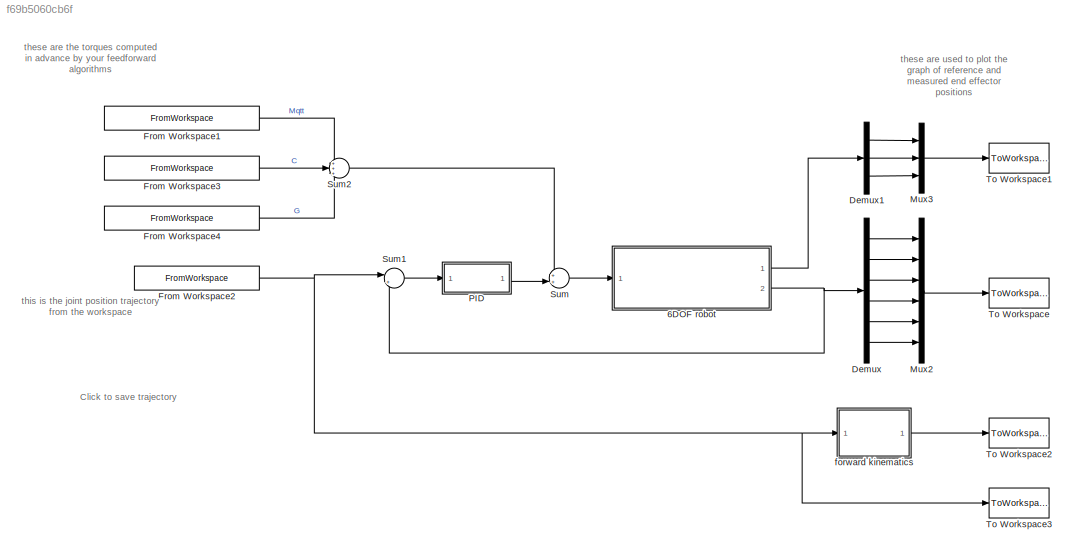
MODEL slx_f69b5060cb6f
KIND model
CONFIG AbsTol = auto
CONFIG EnableMultiTasking = on
CONFIG FixedStep = 0.01
CONFIG InitFcn = % set up model parameters from configuration block\nhws=get_param(gcs,'modelworkspace');\n%if strcmpi(get_param([gcs '/configuration'],'dmp'),'on');\n    hws.assignin('damp',0.0001);\n%else\n%    hws.assignin('damp',0);\n%end\n%if strcmpi(get_param([gcs '/configuration'],'grv'),'on');\n    hws.assignin('grav',9.81);\n%else\n %   hws.assignin('grav',0);\n%end\nswitch get_param([gcs '/PID'],'pid'),\ncase 'off',\n...<+1796ch>
CONFIG MaxStep = .6
CONFIG MinStep = auto
CONFIG RelTol = 1e-3
CONFIG SampleTimeConstraint = Unconstrained
CONFIG Solver = ode45
CONFIG SolverName = ode45
CONFIG StartTime = 0.0
CONFIG StopFcn = figure(69);clf;\nsubplot(2,1,1);\nplot(xyz_m.Time,xyz_m.Data(:,1),'r-');\ntitle('end effector position');\nhold on;\nplot(xyz_m.Time,xyz_m.Data(:,2),'g-');\nplot(xyz_m.Time,xyz_m.Data(:,3),'b-');\nplot(xyz_r.Time,xyz_r.Data(:,1),'r--');\nplot(xyz_r.Time,xyz_r.Data(:,2),'g--');\nplot(xyz_r.Time,xyz_r.Data(:,3),'b--');\nlegend('measured x','measured y','measured z','reference x','reference y','reference z');\n...<+232ch>
CONFIG StopTime = simtraj.time(end)
WORKSPACE source: MATLAB code (in-file)
WORKSPACE rho = 7850
WORKSPACE d1 = 0.3
WORKSPACE a2 = 0.2
WORKSPACE d4 = 0.2
WORKSPACE d6 = 0.1
WORKSPACE alpha = [90 0 90 -90 90 0]*pi/180
WORKSPACE rad1 = .02  (= 0.02)
WORKSPACE code: wid2=0.03;thi2=0.01;     % link 2 (beam)
WORKSPACE funnybone = 0.03
WORKSPACE rad4 = 0.01
WORKSPACE carpals = 0.03
WORKSPACE rad6 = 0.01
WORKSPACE damp = 0
WORKSPACE q = [0 0 0 0 0 0]
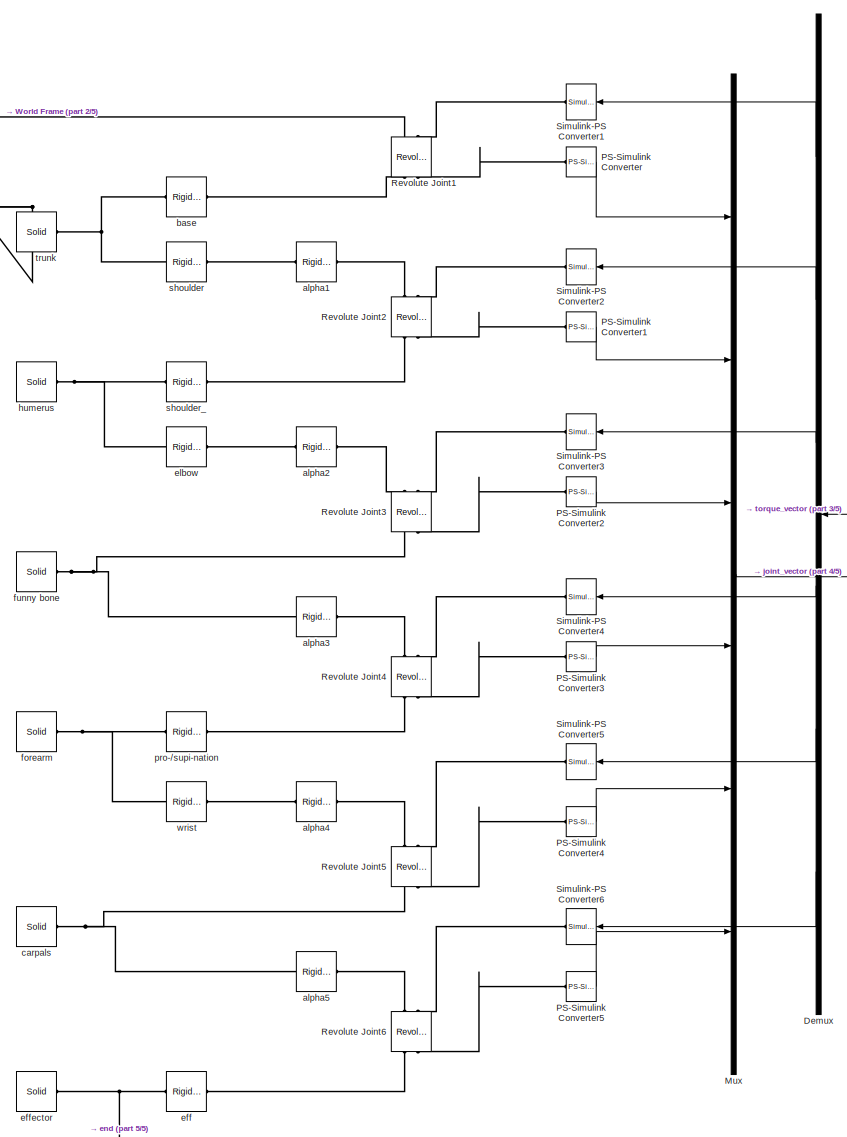
[diagram: 6DOF robot - part 1/5, center side, full height]
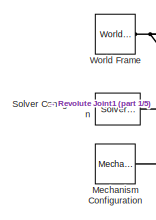
[diagram: 6DOF robot - part 2/5, top left region]
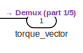
[diagram: 6DOF robot - part 3/5, middle right region]
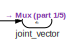
[diagram: 6DOF robot - part 4/5, middle right region]
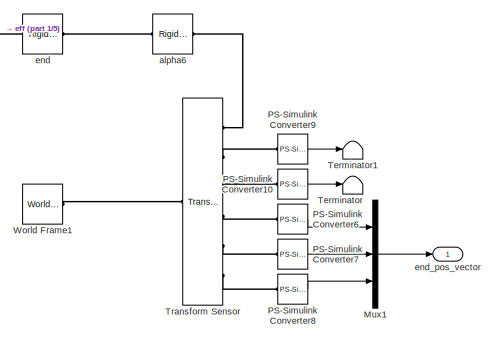
[diagram: 6DOF robot - part 5/5, bottom center region]
BLOCK [SubSystem] 6DOF robot
  Ports = [1, 2]
  RequestExecContextInheritance = off
  Variant = off
BLOCK [Demux] 6DOF robot/Demux
  DisplayOption = bar
  Outputs = 6
  Ports = [1, 6]
BLOCK [Reference] 6DOF robot/Mechanism  Configuration  REF=sm_lib/Utilities/Mechanism
Configuration
  Ports = [0, 0, 0, 0, 0, 0, 1]
  SourceBlock = sm_lib/Utilities/Mechanism\nConfiguration
  SourceProductBaseCode = MS
  SourceProductName = Simscape Multibody
  SourceType = Mechanism\nConfiguration
BLOCK [Mux] 6DOF robot/Mux
  DisplayOption = bar
  Inputs = 6
  Ports = [6, 1]
BLOCK [Mux] 6DOF robot/Mux1
  DisplayOption = bar
  Inputs = 3
  Ports = [3, 1]
BLOCK [Reference] 6DOF robot/PS-Simulink Converter  REF=nesl_utility/PS-Simulink
Converter
  Ports = [0, 1, 0, 0, 0, 1]
  SourceBlock = nesl_utility/PS-Simulink\nConverter
  SourceProductBaseCode = SS
  SourceProductName = Simscape
  SourceType = PS-Simulink\nConverter
BLOCK [Reference] 6DOF robot/PS-Simulink Converter1  REF=nesl_utility/PS-Simulink
Converter
  Ports = [0, 1, 0, 0, 0, 1]
  SourceBlock = nesl_utility/PS-Simulink\nConverter
  SourceProductBaseCode = SS
  SourceProductName = Simscape
  SourceType = PS-Simulink\nConverter
BLOCK [Reference] 6DOF robot/PS-Simulink Converter10  REF=nesl_utility/PS-Simulink
Converter
  Ports = [0, 1, 0, 0, 0, 1]
  SourceBlock = nesl_utility/PS-Simulink\nConverter
  SourceProductBaseCode = SS
  SourceProductName = Simscape
  SourceType = PS-Simulink\nConverter
BLOCK [Reference] 6DOF robot/PS-Simulink Converter2  REF=nesl_utility/PS-Simulink
Converter
  Ports = [0, 1, 0, 0, 0, 1]
  SourceBlock = nesl_utility/PS-Simulink\nConverter
  SourceProductBaseCode = SS
  SourceProductName = Simscape
  SourceType = PS-Simulink\nConverter
BLOCK [Reference] 6DOF robot/PS-Simulink Converter3  REF=nesl_utility/PS-Simulink
Converter
  Ports = [0, 1, 0, 0, 0, 1]
  SourceBlock = nesl_utility/PS-Simulink\nConverter
  SourceProductBaseCode = SS
  SourceProductName = Simscape
  SourceType = PS-Simulink\nConverter
BLOCK [Reference] 6DOF robot/PS-Simulink Converter4  REF=nesl_utility/PS-Simulink
Converter
  Ports = [0, 1, 0, 0, 0, 1]
  SourceBlock = nesl_utility/PS-Simulink\nConverter
  SourceProductBaseCode = SS
  SourceProductName = Simscape
  SourceType = PS-Simulink\nConverter
BLOCK [Reference] 6DOF robot/PS-Simulink Converter5  REF=nesl_utility/PS-Simulink
Converter
  Ports = [0, 1, 0, 0, 0, 1]
  SourceBlock = nesl_utility/PS-Simulink\nConverter
  SourceProductBaseCode = SS
  SourceProductName = Simscape
  SourceType = PS-Simulink\nConverter
BLOCK [Reference] 6DOF robot/PS-Simulink Converter6  REF=nesl_utility/PS-Simulink
Converter
  Ports = [0, 1, 0, 0, 0, 1]
  SourceBlock = nesl_utility/PS-Simulink\nConverter
  SourceProductBaseCode = SS
  SourceProductName = Simscape
  SourceType = PS-Simulink\nConverter
BLOCK [Reference] 6DOF robot/PS-Simulink Converter7  REF=nesl_utility/PS-Simulink
Converter
  Ports = [0, 1, 0, 0, 0, 1]
  SourceBlock = nesl_utility/PS-Simulink\nConverter
  SourceProductBaseCode = SS
  SourceProductName = Simscape
  SourceType = PS-Simulink\nConverter
BLOCK [Reference] 6DOF robot/PS-Simulink Converter8  REF=nesl_utility/PS-Simulink
Converter
  Ports = [0, 1, 0, 0, 0, 1]
  SourceBlock = nesl_utility/PS-Simulink\nConverter
  SourceProductBaseCode = SS
  SourceProductName = Simscape
  SourceType = PS-Simulink\nConverter
BLOCK [Reference] 6DOF robot/PS-Simulink Converter9  REF=nesl_utility/PS-Simulink
Converter
  Ports = [0, 1, 0, 0, 0, 1]
  SourceBlock = nesl_utility/PS-Simulink\nConverter
  SourceProductBaseCode = SS
  SourceProductName = Simscape
  SourceType = PS-Simulink\nConverter
BLOCK [Reference] 6DOF robot/Revolute Joint1  REF=sm_lib/Joints/Revolute Joint
  Ports = [0, 0, 0, 0, 0, 2, 2]
  SourceBlock = sm_lib/Joints/Revolute Joint
  SourceProductBaseCode = MS
  SourceProductName = Simscape Multibody
  SourceType = Revolute Joint
BLOCK [Reference] 6DOF robot/Revolute Joint2  REF=sm_lib/Joints/Revolute Joint
  Ports = [0, 0, 0, 0, 0, 2, 2]
  SourceBlock = sm_lib/Joints/Revolute Joint
  SourceProductBaseCode = MS
  SourceProductName = Simscape Multibody
  SourceType = Revolute Joint
BLOCK [Reference] 6DOF robot/Revolute Joint3  REF=sm_lib/Joints/Revolute Joint
  Ports = [0, 0, 0, 0, 0, 2, 2]
  SourceBlock = sm_lib/Joints/Revolute Joint
  SourceProductBaseCode = MS
  SourceProductName = Simscape Multibody
  SourceType = Revolute Joint
BLOCK [Reference] 6DOF robot/Revolute Joint4  REF=sm_lib/Joints/Revolute Joint
  Ports = [0, 0, 0, 0, 0, 2, 2]
  SourceBlock = sm_lib/Joints/Revolute Joint
  SourceProductBaseCode = MS
  SourceProductName = Simscape Multibody
  SourceType = Revolute Joint
BLOCK [Reference] 6DOF robot/Revolute Joint5  REF=sm_lib/Joints/Revolute Joint
  Ports = [0, 0, 0, 0, 0, 2, 2]
  SourceBlock = sm_lib/Joints/Revolute Joint
  SourceProductBaseCode = MS
  SourceProductName = Simscape Multibody
  SourceType = Revolute Joint
BLOCK [Reference] 6DOF robot/Revolute Joint6  REF=sm_lib/Joints/Revolute Joint
  Ports = [0, 0, 0, 0, 0, 2, 2]
  SourceBlock = sm_lib/Joints/Revolute Joint
  SourceProductBaseCode = MS
  SourceProductName = Simscape Multibody
  SourceType = Revolute Joint
BLOCK [Reference] 6DOF robot/Simulink-PS Converter1  REF=nesl_utility/Simulink-PS
Converter
  Ports = [1, 0, 0, 0, 0, 0, 1]
  SourceBlock = nesl_utility/Simulink-PS\nConverter
  SourceProductBaseCode = SS
  SourceProductName = Simscape
  SourceType = Simulink-PS\nConverter
BLOCK [Reference] 6DOF robot/Simulink-PS Converter2  REF=nesl_utility/Simulink-PS
Converter
  Ports = [1, 0, 0, 0, 0, 0, 1]
  SourceBlock = nesl_utility/Simulink-PS\nConverter
  SourceProductBaseCode = SS
  SourceProductName = Simscape
  SourceType = Simulink-PS\nConverter
BLOCK [Reference] 6DOF robot/Simulink-PS Converter3  REF=nesl_utility/Simulink-PS
Converter
  Ports = [1, 0, 0, 0, 0, 0, 1]
  SourceBlock = nesl_utility/Simulink-PS\nConverter
  SourceProductBaseCode = SS
  SourceProductName = Simscape
  SourceType = Simulink-PS\nConverter
BLOCK [Reference] 6DOF robot/Simulink-PS Converter4  REF=nesl_utility/Simulink-PS
Converter
  Ports = [1, 0, 0, 0, 0, 0, 1]
  SourceBlock = nesl_utility/Simulink-PS\nConverter
  SourceProductBaseCode = SS
  SourceProductName = Simscape
  SourceType = Simulink-PS\nConverter
BLOCK [Reference] 6DOF robot/Simulink-PS Converter5  REF=nesl_utility/Simulink-PS
Converter
  Ports = [1, 0, 0, 0, 0, 0, 1]
  SourceBlock = nesl_utility/Simulink-PS\nConverter
  SourceProductBaseCode = SS
  SourceProductName = Simscape
  SourceType = Simulink-PS\nConverter
BLOCK [Reference] 6DOF robot/Simulink-PS Converter6  REF=nesl_utility/Simulink-PS
Converter
  Ports = [1, 0, 0, 0, 0, 0, 1]
  SourceBlock = nesl_utility/Simulink-PS\nConverter
  SourceProductBaseCode = SS
  SourceProductName = Simscape
  SourceType = Simulink-PS\nConverter
BLOCK [Reference] 6DOF robot/Solver Configuration  REF=nesl_utility/Solver
Configuration
  Ports = [0, 0, 0, 0, 0, 0, 1]
  SourceBlock = nesl_utility/Solver\nConfiguration
  SourceProductBaseCode = SS
  SourceProductName = Simscape
  SourceType = Solver\nConfiguration
BLOCK [Terminator] 6DOF robot/Terminator
BLOCK [Terminator] 6DOF robot/Terminator1
BLOCK [Reference] 6DOF robot/Transform  Sensor  REF=sm_lib/Frames and
Transforms/Transform
Sensor
  Ports = [0, 0, 0, 0, 0, 1, 6]
  SourceBlock = sm_lib/Frames and\nTransforms/Transform\nSensor
  SourceProductBaseCode = MS
  SourceProductName = Simscape Multibody
  SourceType = Transform\nSensor
BLOCK [Reference] 6DOF robot/World Frame  REF=sm_lib/Frames and
Transforms/World Frame
  Ports = [0, 0, 0, 0, 0, 0, 1]
  SourceBlock = sm_lib/Frames and\nTransforms/World Frame
  SourceProductBaseCode = MS
  SourceProductName = Simscape Multibody
  SourceType = World Frame
BLOCK [Reference] 6DOF robot/World Frame1  REF=sm_lib/Frames and
Transforms/World Frame
  Ports = [0, 0, 0, 0, 0, 0, 1]
  SourceBlock = sm_lib/Frames and\nTransforms/World Frame
  SourceProductBaseCode = MS
  SourceProductName = Simscape Multibody
  SourceType = World Frame
BLOCK [Reference] 6DOF robot/alpha1  REF=sm_lib/Frames and
Transforms/Rigid
Transform
  Ports = [0, 0, 0, 0, 0, 1, 1]
  SourceBlock = sm_lib/Frames and\nTransforms/Rigid\nTransform
  SourceProductBaseCode = MS
  SourceProductName = Simscape Multibody
  SourceType = Rigid\nTransform
BLOCK [Reference] 6DOF robot/alpha2  REF=sm_lib/Frames and
Transforms/Rigid
Transform
  Ports = [0, 0, 0, 0, 0, 1, 1]
  SourceBlock = sm_lib/Frames and\nTransforms/Rigid\nTransform
  SourceProductBaseCode = MS
  SourceProductName = Simscape Multibody
  SourceType = Rigid\nTransform
BLOCK [Reference] 6DOF robot/alpha3  REF=sm_lib/Frames and
Transforms/Rigid
Transform
  Ports = [0, 0, 0, 0, 0, 1, 1]
  SourceBlock = sm_lib/Frames and\nTransforms/Rigid\nTransform
  SourceProductBaseCode = MS
  SourceProductName = Simscape Multibody
  SourceType = Rigid\nTransform
BLOCK [Reference] 6DOF robot/alpha4  REF=sm_lib/Frames and
Transforms/Rigid
Transform
  Ports = [0, 0, 0, 0, 0, 1, 1]
  SourceBlock = sm_lib/Frames and\nTransforms/Rigid\nTransform
  SourceProductBaseCode = MS
  SourceProductName = Simscape Multibody
  SourceType = Rigid\nTransform
BLOCK [Reference] 6DOF robot/alpha5  REF=sm_lib/Frames and
Transforms/Rigid
Transform
  Ports = [0, 0, 0, 0, 0, 1, 1]
  SourceBlock = sm_lib/Frames and\nTransforms/Rigid\nTransform
  SourceProductBaseCode = MS
  SourceProductName = Simscape Multibody
  SourceType = Rigid\nTransform
BLOCK [Reference] 6DOF robot/alpha6  REF=sm_lib/Frames and
Transforms/Rigid
Transform
  Ports = [0, 0, 0, 0, 0, 1, 1]
  SourceBlock = sm_lib/Frames and\nTransforms/Rigid\nTransform
  SourceProductBaseCode = MS
  SourceProductName = Simscape Multibody
  SourceType = Rigid\nTransform
BLOCK [Reference] 6DOF robot/base  REF=sm_lib/Frames and
Transforms/Rigid
Transform
  Ports = [0, 0, 0, 0, 0, 1, 1]
  SourceBlock = sm_lib/Frames and\nTransforms/Rigid\nTransform
  SourceProductBaseCode = MS
  SourceProductName = Simscape Multibody
  SourceType = Rigid\nTransform
BLOCK [Reference] 6DOF robot/carpals  REF=sm_lib/Body Elements/Solid
  Ports = [0, 0, 0, 0, 0, 0, 1]
  SourceBlock = sm_lib/Body Elements/Solid
  SourceProductBaseCode = MS
  SourceProductName = Simscape Multibody
  SourceType = Solid
BLOCK [Reference] 6DOF robot/eff  REF=sm_lib/Frames and
Transforms/Rigid
Transform
  Ports = [0, 0, 0, 0, 0, 1, 1]
  SourceBlock = sm_lib/Frames and\nTransforms/Rigid\nTransform
  SourceProductBaseCode = MS
  SourceProductName = Simscape Multibody
  SourceType = Rigid\nTransform
BLOCK [Reference] 6DOF robot/effector  REF=sm_lib/Body Elements/Solid
  Ports = [0, 0, 0, 0, 0, 0, 1]
  SourceBlock = sm_lib/Body Elements/Solid
  SourceProductBaseCode = MS
  SourceProductName = Simscape Multibody
  SourceType = Solid
BLOCK [Reference] 6DOF robot/elbow  REF=sm_lib/Frames and
Transforms/Rigid
Transform
  Ports = [0, 0, 0, 0, 0, 1, 1]
  SourceBlock = sm_lib/Frames and\nTransforms/Rigid\nTransform
  SourceProductBaseCode = MS
  SourceProductName = Simscape Multibody
  SourceType = Rigid\nTransform
BLOCK [Reference] 6DOF robot/end  REF=sm_lib/Frames and
Transforms/Rigid
Transform
  Ports = [0, 0, 0, 0, 0, 1, 1]
  SourceBlock = sm_lib/Frames and\nTransforms/Rigid\nTransform
  SourceProductBaseCode = MS
  SourceProductName = Simscape Multibody
  SourceType = Rigid\nTransform
BLOCK [Outport] 6DOF robot/end_pos_vector
  IconDisplay = Port number
BLOCK [Reference] 6DOF robot/forearm  REF=sm_lib/Body Elements/Solid
  Ports = [0, 0, 0, 0, 0, 0, 1]
  SourceBlock = sm_lib/Body Elements/Solid
  SourceProductBaseCode = MS
  SourceProductName = Simscape Multibody
  SourceType = Solid
BLOCK [Reference] 6DOF robot/funny bone  REF=sm_lib/Body Elements/Solid
  Ports = [0, 0, 0, 0, 0, 0, 1]
  SourceBlock = sm_lib/Body Elements/Solid
  SourceProductBaseCode = MS
  SourceProductName = Simscape Multibody
  SourceType = Solid
BLOCK [Reference] 6DOF robot/humerus  REF=sm_lib/Body Elements/Solid
  Ports = [0, 0, 0, 0, 0, 0, 1]
  SourceBlock = sm_lib/Body Elements/Solid
  SourceProductBaseCode = MS
  SourceProductName = Simscape Multibody
  SourceType = Solid
BLOCK [Outport] 6DOF robot/joint_vector
  IconDisplay = Port number
  Port = 2
BLOCK [Reference] 6DOF robot/pro-//supi-nation  REF=sm_lib/Frames and
Transforms/Rigid
Transform
  Ports = [0, 0, 0, 0, 0, 1, 1]
  SourceBlock = sm_lib/Frames and\nTransforms/Rigid\nTransform
  SourceProductBaseCode = MS
  SourceProductName = Simscape Multibody
  SourceType = Rigid\nTransform
BLOCK [Reference] 6DOF robot/shoulder  REF=sm_lib/Frames and
Transforms/Rigid
Transform
  Ports = [0, 0, 0, 0, 0, 1, 1]
  SourceBlock = sm_lib/Frames and\nTransforms/Rigid\nTransform
  SourceProductBaseCode = MS
  SourceProductName = Simscape Multibody
  SourceType = Rigid\nTransform
BLOCK [Reference] 6DOF robot/shoulder_  REF=sm_lib/Frames and
Transforms/Rigid
Transform
  Ports = [0, 0, 0, 0, 0, 1, 1]
  SourceBlock = sm_lib/Frames and\nTransforms/Rigid\nTransform
  SourceProductBaseCode = MS
  SourceProductName = Simscape Multibody
  SourceType = Rigid\nTransform
BLOCK [Inport] 6DOF robot/torque_vector
  IconDisplay = Port number
BLOCK [Reference] 6DOF robot/trunk  REF=sm_lib/Body Elements/Solid
  Ports = [0, 0, 0, 0, 0, 0, 1]
  SourceBlock = sm_lib/Body Elements/Solid
  SourceProductBaseCode = MS
  SourceProductName = Simscape Multibody
  SourceType = Solid
BLOCK [Reference] 6DOF robot/wrist  REF=sm_lib/Frames and
Transforms/Rigid
Transform
  Ports = [0, 0, 0, 0, 0, 1, 1]
  SourceBlock = sm_lib/Frames and\nTransforms/Rigid\nTransform
  SourceProductBaseCode = MS
  SourceProductName = Simscape Multibody
  SourceType = Rigid\nTransform
BLOCK [Demux] Demux
  DisplayOption = bar
  Outputs = 6
  Ports = [1, 6]
BLOCK [Demux] Demux1
  DisplayOption = bar
  Outputs = 3
  Ports = [1, 3]
BLOCK [FromWorkspace] From Workspace1
  SampleTime = 0
  VariableName = [simtraj.time(:) simtraj.Mqtt]
  ZeroCross = on
BLOCK [FromWorkspace] From Workspace2
  SampleTime = 0
  VariableName = [simtraj.time(:) simtraj.q]
  ZeroCross = on
BLOCK [FromWorkspace] From Workspace3
  SampleTime = 0
  VariableName = [simtraj.time(:) simtraj.C]
  ZeroCross = on
BLOCK [FromWorkspace] From Workspace4
  SampleTime = 0
  VariableName = [simtraj.time(:) simtraj.G]
  ZeroCross = on
BLOCK [Mux] Mux2
  DisplayOption = bar
  Inputs = 6
  Ports = [6, 1]
BLOCK [Mux] Mux3
  DisplayOption = bar
  Inputs = 3
  Ports = [3, 1]
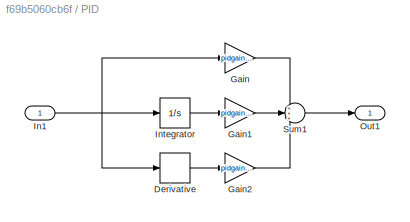
BLOCK [SubSystem] PID
  Ports = [1, 1]
  RequestExecContextInheritance = off
  Variant = off
BLOCK [Derivative] PID/Derivative
BLOCK [Gain] PID/Gain
  Gain = pidgain(1)
  OutDataTypeStr = Inherit: Inherit via internal rule
  ParamDataTypeStr = Inherit: Inherit via internal rule
  SaturateOnIntegerOverflow = off
BLOCK [Gain] PID/Gain1
  Gain = pidgain(2)
  OutDataTypeStr = Inherit: Inherit via internal rule
  ParamDataTypeStr = Inherit: Inherit via internal rule
  SaturateOnIntegerOverflow = off
BLOCK [Gain] PID/Gain2
  Gain = pidgain(3)
  OutDataTypeStr = Inherit: Inherit via internal rule
  ParamDataTypeStr = Inherit: Inherit via internal rule
  SaturateOnIntegerOverflow = off
BLOCK [Inport] PID/In1
  IconDisplay = Port number
BLOCK [Integrator] PID/Integrator
  Ports = [1, 1]
BLOCK [Outport] PID/Out1
  IconDisplay = Port number
BLOCK [Sum] PID/Sum1
  IconShape = round
  InputSameDT = off
  Inputs = +++
  OutDataTypeStr = Inherit: Inherit via internal rule
  Ports = [3, 1]
  SaturateOnIntegerOverflow = off
BLOCK [Sum] Sum
  IconShape = round
  InputSameDT = off
  Inputs = ++|
  OutDataTypeStr = Inherit: Inherit via internal rule
  Ports = [2, 1]
  SaturateOnIntegerOverflow = off
BLOCK [Sum] Sum1
  IconShape = round
  InputSameDT = off
  Inputs = |+-
  OutDataTypeStr = Inherit: Inherit via internal rule
  Ports = [2, 1]
  SaturateOnIntegerOverflow = off
BLOCK [Sum] Sum2
  IconShape = round
  InputSameDT = off
  Inputs = +++
  OutDataTypeStr = Inherit: Inherit via internal rule
  Ports = [3, 1]
  SaturateOnIntegerOverflow = off
BLOCK [ToWorkspace] To Workspace
  MaxDataPoints = inf
  Ports = [1]
  SampleTime = 0.01
  SaveFormat = Timeseries
  VariableName = theta_m
BLOCK [ToWorkspace] To Workspace1
  MaxDataPoints = inf
  Ports = [1]
  SampleTime = 0.01
  SaveFormat = Timeseries
  VariableName = xyz_m
BLOCK [ToWorkspace] To Workspace2
  MaxDataPoints = inf
  Ports = [1]
  SampleTime = 0.01
  SaveFormat = Timeseries
  VariableName = xyz_r
BLOCK [ToWorkspace] To Workspace3
  MaxDataPoints = inf
  Ports = [1]
  SampleTime = 0.01
  SaveFormat = Timeseries
  VariableName = theta_r
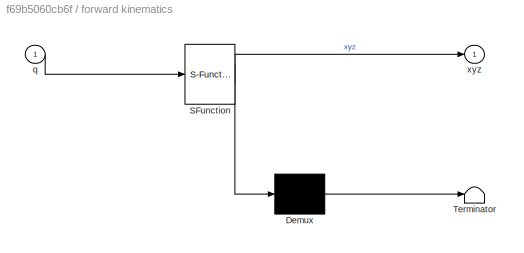
BLOCK [SubSystem] forward kinematics
  ErrorFcn = Stateflow.Translate.translate
  PermitHierarchicalResolution = ExplicitOnly
  Ports = [1, 1]
  RequestExecContextInheritance = off
  SFBlockType = MATLAB Function
  TreatAsAtomicUnit = on
  Variant = off
BLOCK [Demux] forward kinematics/ Demux 
  Outputs = 1
  Ports = [1, 1]
BLOCK [S-Function] forward kinematics/ SFunction 
  EnableBusSupport = on
  FunctionName = sf_sfun
  PortCounts = [1 2]
  Ports = [1, 2]
  SFcnIsStateOwnerBlock = off
  SFunctionDeploymentMode = off
  Tag = Stateflow S-Function simMech_robot_lab 2
BLOCK [Terminator] forward kinematics/ Terminator 
BLOCK [Inport] forward kinematics/q
  IconDisplay = Port number
BLOCK [Outport] forward kinematics/xyz
  IconDisplay = Port number
ANNOTATION (root): this is the joint position trajectory from the workspace
ANNOTATION (root): Click to save trajectory
ANNOTATION (root): these are the torques computed in advance by your feedforward algorithms
ANNOTATION (root): these are used to plot the graph of reference and measured end effector positions
LINE 6DOF robot/Demux:1 -> 6DOF robot/Simulink-PS Converter1:1
LINE 6DOF robot/Demux:2 -> 6DOF robot/Simulink-PS Converter2:1
LINE 6DOF robot/Demux:3 -> 6DOF robot/Simulink-PS Converter3:1
LINE 6DOF robot/Demux:4 -> 6DOF robot/Simulink-PS Converter4:1
LINE 6DOF robot/Demux:5 -> 6DOF robot/Simulink-PS Converter5:1
LINE 6DOF robot/Demux:6 -> 6DOF robot/Simulink-PS Converter6:1
LINE 6DOF robot/Mux1:1 -> 6DOF robot/end_pos_vector:1
LINE 6DOF robot/Mux:1 -> 6DOF robot/joint_vector:1
LINE 6DOF robot/PS-Simulink Converter10:1 -> 6DOF robot/Terminator:1
LINE 6DOF robot/PS-Simulink Converter1:1 -> 6DOF robot/Mux:2
LINE 6DOF robot/PS-Simulink Converter2:1 -> 6DOF robot/Mux:3
LINE 6DOF robot/PS-Simulink Converter3:1 -> 6DOF robot/Mux:4
LINE 6DOF robot/PS-Simulink Converter4:1 -> 6DOF robot/Mux:5
LINE 6DOF robot/PS-Simulink Converter5:1 -> 6DOF robot/Mux:6
LINE 6DOF robot/PS-Simulink Converter6:1 -> 6DOF robot/Mux1:1
LINE 6DOF robot/PS-Simulink Converter7:1 -> 6DOF robot/Mux1:2
LINE 6DOF robot/PS-Simulink Converter8:1 -> 6DOF robot/Mux1:3
LINE 6DOF robot/PS-Simulink Converter9:1 -> 6DOF robot/Terminator1:1
LINE 6DOF robot/PS-Simulink Converter:1 -> 6DOF robot/Mux:1
LINE 6DOF robot/torque_vector:1 -> 6DOF robot/Demux:1
LINE 6DOF robot:1 -> Demux1:1
NET 6DOF robot:2 -> Demux:1, Sum1:2
LINE Demux1:1 -> Mux3:1
LINE Demux1:2 -> Mux3:2
LINE Demux1:3 -> Mux3:3
LINE Demux:1 -> Mux2:1
LINE Demux:2 -> Mux2:2
LINE Demux:3 -> Mux2:3
LINE Demux:4 -> Mux2:4
LINE Demux:5 -> Mux2:5
LINE Demux:6 -> Mux2:6
LINE From Workspace1:1 -> Sum2:1
NET From Workspace2:1 -> Sum1:1, To Workspace3:1, forward kinematics:1
LINE From Workspace3:1 -> Sum2:2
LINE From Workspace4:1 -> Sum2:3
LINE Mux2:1 -> To Workspace:1
LINE Mux3:1 -> To Workspace1:1
LINE PID/Derivative:1 -> PID/Gain2:1
LINE PID/Gain1:1 -> PID/Sum1:2
LINE PID/Gain2:1 -> PID/Sum1:3
LINE PID/Gain:1 -> PID/Sum1:1
NET PID/In1:1 -> PID/Derivative:1, PID/Gain:1, PID/Integrator:1
LINE PID/Integrator:1 -> PID/Gain1:1
LINE PID/Sum1:1 -> PID/Out1:1
LINE PID:1 -> Sum:2
LINE Sum1:1 -> PID:1
LINE Sum2:1 -> Sum:1
LINE Sum:1 -> 6DOF robot:1
LINE forward kinematics:1 -> To Workspace2:1
PNET net1: 6DOF robot/Mechanism  Configuration:RConn1 -- 6DOF robot/Revolute Joint1:LConn1 -- 6DOF robot/Solver Configuration:RConn1 -- 6DOF robot/World Frame:RConn1
PLINE 6DOF robot/PS-Simulink Converter10:LConn1 -- 6DOF robot/Transform  Sensor:RConn3
PLINE 6DOF robot/PS-Simulink Converter1:LConn1 -- 6DOF robot/Revolute Joint2:RConn2
PLINE 6DOF robot/PS-Simulink Converter2:LConn1 -- 6DOF robot/Revolute Joint3:RConn2
PLINE 6DOF robot/PS-Simulink Converter3:LConn1 -- 6DOF robot/Revolute Joint4:RConn2
PLINE 6DOF robot/PS-Simulink Converter4:LConn1 -- 6DOF robot/Revolute Joint5:RConn2
PLINE 6DOF robot/PS-Simulink Converter5:LConn1 -- 6DOF robot/Revolute Joint6:RConn2
PLINE 6DOF robot/PS-Simulink Converter6:LConn1 -- 6DOF robot/Transform  Sensor:RConn4
PLINE 6DOF robot/PS-Simulink Converter7:LConn1 -- 6DOF robot/Transform  Sensor:RConn5
PLINE 6DOF robot/PS-Simulink Converter8:LConn1 -- 6DOF robot/Transform  Sensor:RConn6
PLINE 6DOF robot/PS-Simulink Converter9:LConn1 -- 6DOF robot/Transform  Sensor:RConn2
PLINE 6DOF robot/PS-Simulink Converter:LConn1 -- 6DOF robot/Revolute Joint1:RConn2
PLINE 6DOF robot/Revolute Joint1:LConn2 -- 6DOF robot/Simulink-PS Converter1:RConn1
PLINE 6DOF robot/Revolute Joint1:RConn1 -- 6DOF robot/base:RConn1
PLINE 6DOF robot/Revolute Joint2:LConn1 -- 6DOF robot/alpha1:RConn1
PLINE 6DOF robot/Revolute Joint2:LConn2 -- 6DOF robot/Simulink-PS Converter2:RConn1
PLINE 6DOF robot/Revolute Joint2:RConn1 -- 6DOF robot/shoulder_:RConn1
PLINE 6DOF robot/Revolute Joint3:LConn1 -- 6DOF robot/alpha2:RConn1
PLINE 6DOF robot/Revolute Joint3:LConn2 -- 6DOF robot/Simulink-PS Converter3:RConn1
PNET net2: 6DOF robot/Revolute Joint3:RConn1 -- 6DOF robot/alpha3:LConn1 -- 6DOF robot/funny bone:RConn1
PLINE 6DOF robot/Revolute Joint4:LConn1 -- 6DOF robot/alpha3:RConn1
PLINE 6DOF robot/Revolute Joint4:LConn2 -- 6DOF robot/Simulink-PS Converter4:RConn1
PLINE 6DOF robot/Revolute Joint4:RConn1 -- 6DOF robot/pro-//supi-nation:RConn1
PLINE 6DOF robot/Revolute Joint5:LConn1 -- 6DOF robot/alpha4:RConn1
PLINE 6DOF robot/Revolute Joint5:LConn2 -- 6DOF robot/Simulink-PS Converter5:RConn1
PNET net3: 6DOF robot/Revolute Joint5:RConn1 -- 6DOF robot/alpha5:LConn1 -- 6DOF robot/carpals:RConn1
PLINE 6DOF robot/Revolute Joint6:LConn1 -- 6DOF robot/alpha5:RConn1
PLINE 6DOF robot/Revolute Joint6:LConn2 -- 6DOF robot/Simulink-PS Converter6:RConn1
PLINE 6DOF robot/Revolute Joint6:RConn1 -- 6DOF robot/eff:RConn1
PLINE 6DOF robot/Transform  Sensor:LConn1 -- 6DOF robot/World Frame1:RConn1
PLINE 6DOF robot/Transform  Sensor:RConn1 -- 6DOF robot/alpha6:RConn1
PLINE 6DOF robot/alpha1:LConn1 -- 6DOF robot/shoulder:RConn1
PLINE 6DOF robot/alpha2:LConn1 -- 6DOF robot/elbow:RConn1
PLINE 6DOF robot/alpha4:LConn1 -- 6DOF robot/wrist:RConn1
PLINE 6DOF robot/alpha6:LConn1 -- 6DOF robot/end:RConn1
PNET net4: 6DOF robot/base:LConn1 -- 6DOF robot/shoulder:LConn1 -- 6DOF robot/trunk:RConn1
PNET net5: 6DOF robot/eff:LConn1 -- 6DOF robot/effector:RConn1 -- 6DOF robot/end:LConn1
PNET net6: 6DOF robot/elbow:LConn1 -- 6DOF robot/humerus:RConn1 -- 6DOF robot/shoulder_:LConn1
PNET net7: 6DOF robot/forearm:RConn1 -- 6DOF robot/pro-//supi-nation:LConn1 -- 6DOF robot/wrist:LConn1
note: NET lines group one-source signal fan-out (src -> all destinations, sorted); 1:1 wires keep LINE; PNET lines group multi-terminal physical nets as a canonical sorted terminal list (undirected conserving connections); 2-terminal nets keep the pairwise PLINE form
CHART forward kinematics states=1 transitions=1
  STATE_LABEL 'eML_blk_kernel()'
  STATE_LABEL 'SCRIPT:\nfunction xyz = fcn(q)\nx=cos(q);z=sin(q);b=zeros(4,4,6);c=0.3;f=0.2;d=0.2;e=0.1;a=[x(1),...\n0,z(1),0;z(1),0,-x(1),0;0,1,0,c;0,0,0,1];a=a*[x(2),-z(2),0,f*x(2);...\nz(2),x(2),0,f*z(2);0,0,1,0;0,0,0,1];a=a*[x(3),0,z(3),0;z(3),0,-x(3)...\n,0;0,1,0,0;0,0,0,1];a=a*[x(4),0,-z(4),0;z(4),0,x(4),0;0,-1,0,d;0,0,...\n0,1];a=a*[x(5),0,z(5),0;z(5),0,-x(5),0;0,1,0,0;0,0,0,1];a=a*[...\nx(6),-z(6),0,0;z(6),x(6)...<+43ch>'
